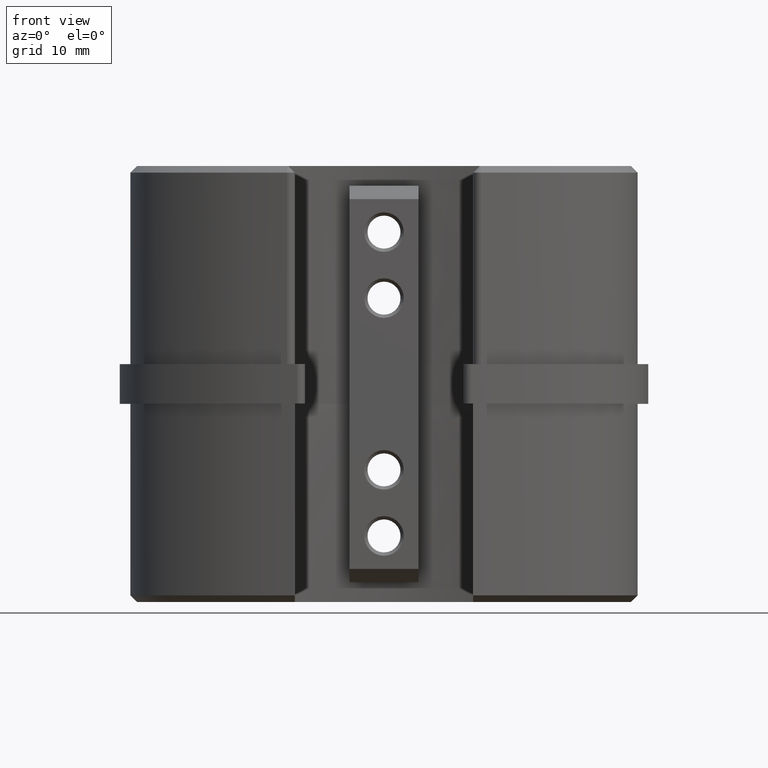
[diagram: clean part render]
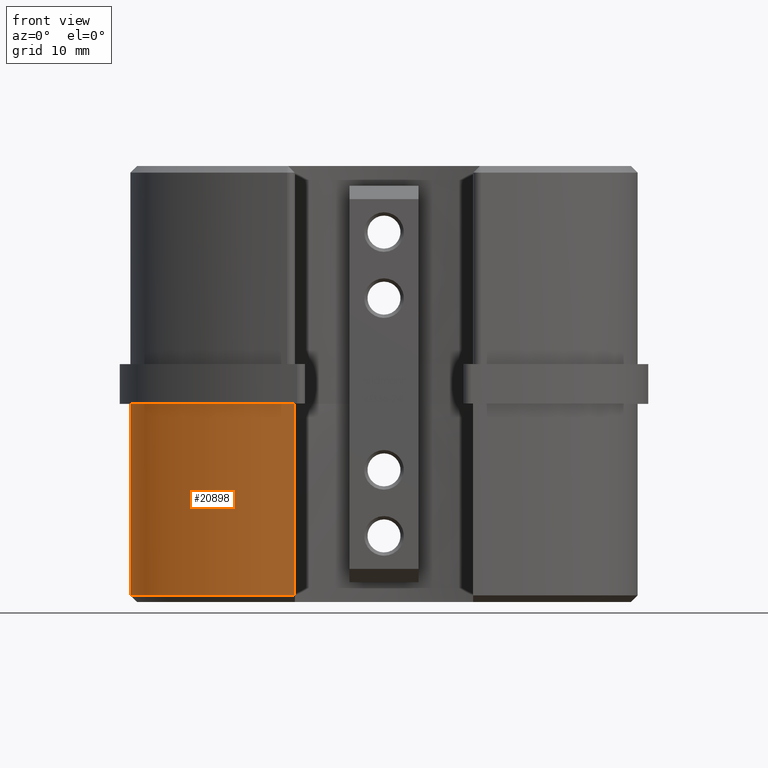
[diagram: same view with one face highlighted and labeled with its STEP entity id]
A machine part, front view. The second image highlights one B-rep face of the part: STEP entity #20898.
In plain terms, the highlighted face is a freeform B-spline surface patch.
Its self-contained STEP definition (entity closure, byte-faithful):
#132 = CARTESIAN_POINT ( 'NONE',  ( -28.98287219777229495, -20.53996752085099331, -32.00000000873312445 ) ) ;
#330 = CARTESIAN_POINT ( 'NONE',  ( -38.39999999999999147, -6.100589991148875235, -3.000000000000000000 ) ) ;
#457 = EDGE_CURVE ( 'NONE', #4788, #14902, #7601, .T. ) ;
#738 = VERTEX_POINT ( 'NONE', #13185 ) ;
#2115 = CARTESIAN_POINT ( 'NONE',  ( -38.39999999999988489, -14.02534781852119039, -31.99999999999998224 ) ) ;
#3266 =( BOUNDED_SURFACE ( )  B_SPLINE_SURFACE ( 3, 1, ( 
 ( #25971, #24039 ),
 ( #9992, #24118 ),
 ( #132, #3897 ),
 ( #14233, #14142 ) ),
 .UNSPECIFIED., .F., .F., .F. ) 
 B_SPLINE_SURFACE_WITH_KNOTS ( ( 4, 4 ),
 ( 2, 2 ),
 ( 0.000000000000000000, 1.000000000000000000 ),
 ( 0.000000000000000000, 1.000000000000000000 ),
 .UNSPECIFIED. ) 
 GEOMETRIC_REPRESENTATION_ITEM ( )  RATIONAL_B_SPLINE_SURFACE ( (
 ( 1.000000000000000000, 1.000000000000000000),
 ( 0.8813727682485780202, 0.8813727682485780202),
 ( 0.8813727682485780202, 0.8813727682485780202),
 ( 1.000000000000000000, 1.000000000000000000) ) ) 
 REPRESENTATION_ITEM ( '' )  SURFACE ( )  );
#3816 = EDGE_CURVE ( 'NONE', #738, #4623, #20781, .T. ) ;
#3897 = CARTESIAN_POINT ( 'NONE',  ( -28.98287219777229495, -20.53996752085099331, -2.999999999999998668 ) ) ;
#4623 = VERTEX_POINT ( 'NONE', #330 ) ;
#4788 = VERTEX_POINT ( 'NONE', #6694 ) ;
#5173 = EDGE_LOOP ( 'NONE', ( #19703, #15673, #19560, #11450 ) ) ;
#6694 = CARTESIAN_POINT ( 'NONE',  ( -13.50000000000000355, -23.32601519453644912, -31.99999999674695061 ) ) ;
#7601 = LINE ( 'NONE', #23569, #22425 ) ;
#8037 = CARTESIAN_POINT ( 'NONE',  ( -28.98287219777240509, -20.53996752085091515, -3.000000000000000444 ) ) ;
#8436 = CARTESIAN_POINT ( 'NONE',  ( -28.98287219777219192, -20.53996752085101107, -31.99999999999998224 ) ) ;
#9951 =( BOUNDED_CURVE ( )  B_SPLINE_CURVE ( 3, ( #10060, #22427, #8037, #24191 ),
 .UNSPECIFIED., .F., .T. ) 
 B_SPLINE_CURVE_WITH_KNOTS ( ( 4, 4 ),
 ( 3.141592653589793116, 4.353149354272858318 ),
 .UNSPECIFIED. ) 
 CURVE ( )  GEOMETRIC_REPRESENTATION_ITEM ( )  RATIONAL_B_SPLINE_CURVE ( ( 1.000000000000000000, 0.8813727682485794634, 0.8813727682485794634, 1.000000000000000000 ) ) 
 REPRESENTATION_ITEM ( '' )  );
#9992 = CARTESIAN_POINT ( 'NONE',  ( -38.39999999999999147, -14.02534781852112289, -32.00000000873312445 ) ) ;
#10060 = CARTESIAN_POINT ( 'NONE',  ( -38.39999999999999147, -6.100589991148875235, -3.000000000000000000 ) ) ;
#11450 = ORIENTED_EDGE ( 'NONE', *, *, #13671, .F. ) ;
#12042 = CARTESIAN_POINT ( 'NONE',  ( -38.39999999999999147, -6.100589991148875235, -33.00000000000000000 ) ) ;
#12126 = EDGE_CURVE ( 'NONE', #738, #4788, #19350, .T. ) ;
#13185 = CARTESIAN_POINT ( 'NONE',  ( -38.39999994135366279, -6.100589991149124813, -31.99999999999998579 ) ) ;
#13291 = DIRECTION ( 'NONE',  ( -0.000000000000000000, -0.000000000000000000, 1.000000000000000000 ) ) ;
#13396 = CARTESIAN_POINT ( 'NONE',  ( -38.39999994135366279, -6.100589991149124813, -31.99999999999998579 ) ) ;
#13671 = EDGE_CURVE ( 'NONE', #4623, #14902, #9951, .T. ) ;
#14142 = CARTESIAN_POINT ( 'NONE',  ( -13.49999999999975664, -23.32601519453649530, -2.999999999999999112 ) ) ;
#14233 = CARTESIAN_POINT ( 'NONE',  ( -13.49999999999975664, -23.32601519453649530, -32.00000000873312445 ) ) ;
#14902 = VERTEX_POINT ( 'NONE', #24973 ) ;
#15673 = ORIENTED_EDGE ( 'NONE', *, *, #12126, .T. ) ;
#16366 = VECTOR ( 'NONE', #19588, 1000.000000000000000 ) ;
#17606 = FACE_OUTER_BOUND ( 'NONE', #5173, .T. ) ;
#19350 =( BOUNDED_CURVE ( )  B_SPLINE_CURVE ( 3, ( #13396, #2115, #8436, #22303 ),
 .UNSPECIFIED., .F., .F. ) 
 B_SPLINE_CURVE_WITH_KNOTS ( ( 4, 4 ),
 ( 0.7822784009221742663, 1.000000000000000000 ),
 .UNSPECIFIED. ) 
 CURVE ( )  GEOMETRIC_REPRESENTATION_ITEM ( )  RATIONAL_B_SPLINE_CURVE ( ( 1.000000000000000000, 0.8813727682485793524, 0.8813727682485793524, 1.000000000000000000 ) ) 
 REPRESENTATION_ITEM ( '' )  );
#19560 = ORIENTED_EDGE ( 'NONE', *, *, #457, .T. ) ;
#19588 = DIRECTION ( 'NONE',  ( -0.000000000000000000, -0.000000000000000000, 1.000000000000000000 ) ) ;
#19703 = ORIENTED_EDGE ( 'NONE', *, *, #3816, .F. ) ;
#20781 = LINE ( 'NONE', #12042, #16366 ) ;
#20898 = ADVANCED_FACE ( 'NONE', ( #17606 ), #3266, .T. ) ;
#22303 = CARTESIAN_POINT ( 'NONE',  ( -13.50000000000000355, -23.32601519453644912, -31.99999999674695061 ) ) ;
#22425 = VECTOR ( 'NONE', #13291, 1000.000000000000000 ) ;
#22427 = CARTESIAN_POINT ( 'NONE',  ( -38.39999999999999147, -14.02534781852106782, -3.000000000000000444 ) ) ;
#23569 = CARTESIAN_POINT ( 'NONE',  ( -13.50000000000000355, -23.32601519453644912, -33.00000000000000000 ) ) ;
#24039 = CARTESIAN_POINT ( 'NONE',  ( -38.39999999999999147, -6.100589991148875235, -2.999999999999999112 ) ) ;
#24118 = CARTESIAN_POINT ( 'NONE',  ( -38.39999999999999147, -14.02534781852112289, -2.999999999999998668 ) ) ;
#24191 = CARTESIAN_POINT ( 'NONE',  ( -13.50000000000000355, -23.32601519453644912, -3.000000000000000000 ) ) ;
#24973 = CARTESIAN_POINT ( 'NONE',  ( -13.50000000000000355, -23.32601519453644912, -3.000000000000000000 ) ) ;
#25971 = CARTESIAN_POINT ( 'NONE',  ( -38.39999999999999147, -6.100589991148875235, -32.00000000873312445 ) ) ;